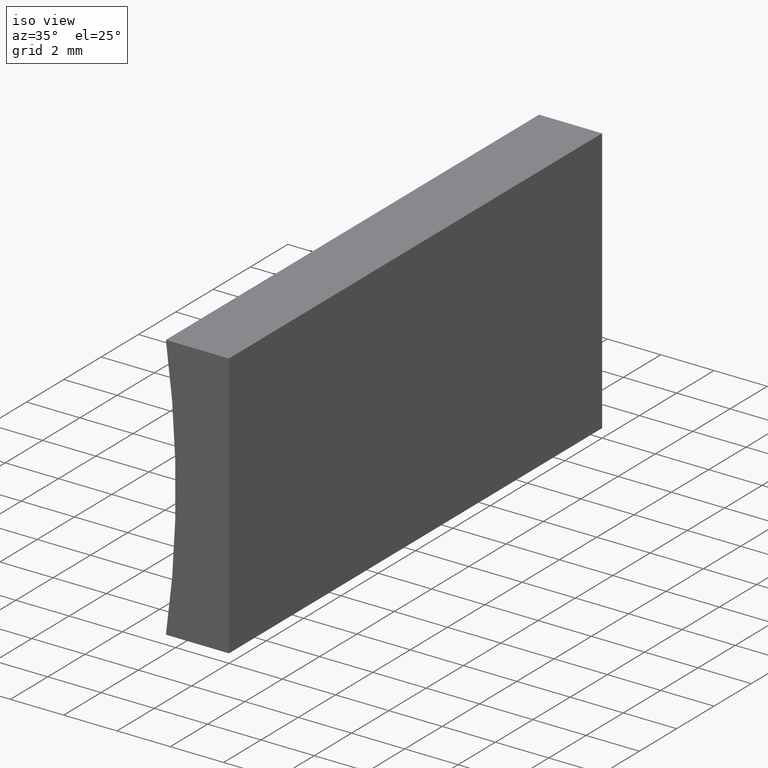
[diagram: clean part render]
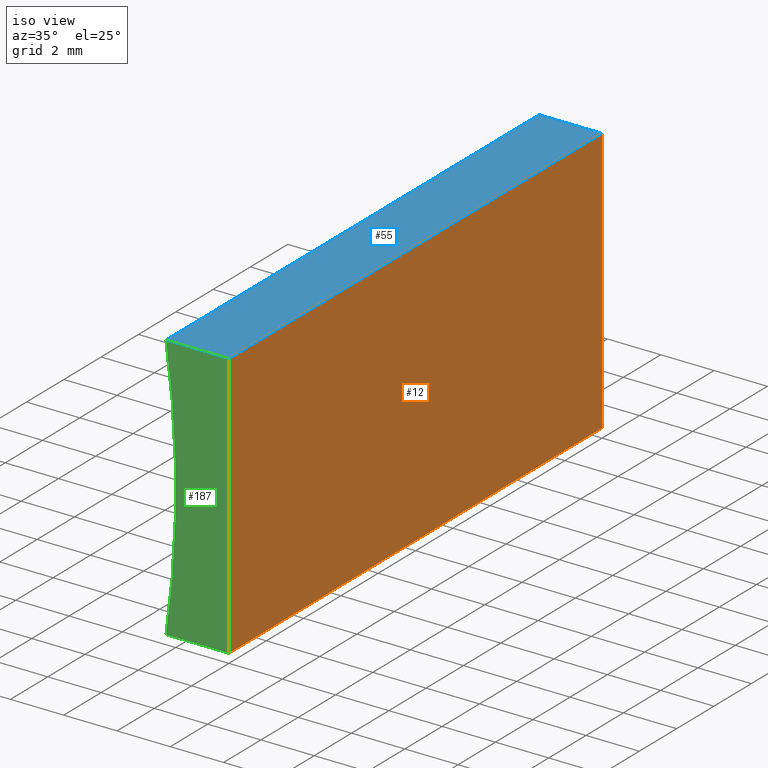
[diagram: same view with three faces highlighted in distinct colors, each labeled with its STEP entity id]
A machine part, iso view with three faces highlighted in distinct colors.
Their STEP definitions:

[orange] entity #12 — the highlighted planar face has unit normal (-1, 0, 0).
#8 = VECTOR ( 'NONE', #140, 1000.000000000000000 ) ;
#12 = ADVANCED_FACE ( 'NONE', ( #47 ), #98, .F. ) ;
#14 = LINE ( 'NONE', #135, #93 ) ;
#22 = ORIENTED_EDGE ( 'NONE', *, *, #115, .T. ) ;
#23 = CARTESIAN_POINT ( 'NONE',  ( 0.0000000000000000000, 20.00000000000000000, 0.0000000000000000000 ) ) ;
#41 = ORIENTED_EDGE ( 'NONE', *, *, #127, .F. ) ;
#43 = ORIENTED_EDGE ( 'NONE', *, *, #86, .T. ) ;
#47 = FACE_OUTER_BOUND ( 'NONE', #137, .T. ) ;
#62 = CARTESIAN_POINT ( 'NONE',  ( 6.123233995736766300E-016, 20.00000000000000000, 10.00000000000000000 ) ) ;
#69 = DIRECTION ( 'NONE',  ( -6.123233995736766000E-017, -0.0000000000000000000, -1.000000000000000000 ) ) ;
#70 = DIRECTION ( 'NONE',  ( -6.123233995736766000E-017, -0.0000000000000000000, -1.000000000000000000 ) ) ;
#72 = AXIS2_PLACEMENT_3D ( 'NONE', #178, #80, #94 ) ;
#74 = LINE ( 'NONE', #193, #8 ) ;
#80 = DIRECTION ( 'NONE',  ( -1.000000000000000000, 0.0000000000000000000, 6.123233995736766000E-017 ) ) ;
#81 = VERTEX_POINT ( 'NONE', #189 ) ;
#86 = EDGE_CURVE ( 'NONE', #119, #81, #14, .T. ) ;
#92 = CARTESIAN_POINT ( 'NONE',  ( 0.0000000000000000000, 20.00000000000000000, 0.0000000000000000000 ) ) ;
#93 = VECTOR ( 'NONE', #69, 1000.000000000000000 ) ;
#94 = DIRECTION ( 'NONE',  ( 6.123233995736766000E-017, 0.0000000000000000000, 1.000000000000000000 ) ) ;
#96 = CARTESIAN_POINT ( 'NONE',  ( 0.0000000000000000000, 20.00000000000000000, 0.0000000000000000000 ) ) ;
#98 = PLANE ( 'NONE',  #72 ) ;
#100 = VERTEX_POINT ( 'NONE', #62 ) ;
#107 = VERTEX_POINT ( 'NONE', #23 ) ;
#115 = EDGE_CURVE ( 'NONE', #100, #119, #74, .T. ) ;
#119 = VERTEX_POINT ( 'NONE', #166 ) ;
#124 = LINE ( 'NONE', #96, #163 ) ;
#127 = EDGE_CURVE ( 'NONE', #107, #81, #124, .T. ) ;
#135 = CARTESIAN_POINT ( 'NONE',  ( 0.0000000000000000000, 0.0000000000000000000, 0.0000000000000000000 ) ) ;
#137 = EDGE_LOOP ( 'NONE', ( #43, #41, #158, #22 ) ) ;
#140 = DIRECTION ( 'NONE',  ( -0.0000000000000000000, -1.000000000000000000, -0.0000000000000000000 ) ) ;
#158 = ORIENTED_EDGE ( 'NONE', *, *, #196, .F. ) ;
#163 = VECTOR ( 'NONE', #176, 1000.000000000000000 ) ;
#165 = VECTOR ( 'NONE', #70, 1000.000000000000000 ) ;
#166 = CARTESIAN_POINT ( 'NONE',  ( 6.123233995736766300E-016, 0.0000000000000000000, 10.00000000000000000 ) ) ;
#176 = DIRECTION ( 'NONE',  ( -0.0000000000000000000, -1.000000000000000000, -0.0000000000000000000 ) ) ;
#178 = CARTESIAN_POINT ( 'NONE',  ( 0.0000000000000000000, 20.00000000000000000, 0.0000000000000000000 ) ) ;
#181 = LINE ( 'NONE', #92, #165 ) ;
#189 = CARTESIAN_POINT ( 'NONE',  ( 0.0000000000000000000, 0.0000000000000000000, 0.0000000000000000000 ) ) ;
#193 = CARTESIAN_POINT ( 'NONE',  ( 6.123233995736766300E-016, 20.00000000000000000, 10.00000000000000000 ) ) ;
#196 = EDGE_CURVE ( 'NONE', #100, #107, #181, .T. ) ;

[blue] entity #55 — the highlighted planar face has unit normal (-0, 0, -1).
#8 = VECTOR ( 'NONE', #140, 1000.000000000000000 ) ;
#16 = ORIENTED_EDGE ( 'NONE', *, *, #141, .F. ) ;
#19 = PLANE ( 'NONE',  #142 ) ;
#27 = DIRECTION ( 'NONE',  ( -7.332349904615366500E-016, 0.0000000000000000000, -1.000000000000000000 ) ) ;
#31 = EDGE_LOOP ( 'NONE', ( #204, #134, #16, #66 ) ) ;
#39 = DIRECTION ( 'NONE',  ( 1.000000000000000000, -0.0000000000000000000, -7.332349904615366500E-016 ) ) ;
#50 = VERTEX_POINT ( 'NONE', #169 ) ;
#52 = CARTESIAN_POINT ( 'NONE',  ( -2.365849282349278500, 20.00000000000000000, 10.00000000000000200 ) ) ;
#55 = ADVANCED_FACE ( 'NONE', ( #99 ), #19, .F. ) ;
#56 = LINE ( 'NONE', #102, #182 ) ;
#62 = CARTESIAN_POINT ( 'NONE',  ( 6.123233995736766300E-016, 20.00000000000000000, 10.00000000000000000 ) ) ;
#66 = ORIENTED_EDGE ( 'NONE', *, *, #84, .T. ) ;
#74 = LINE ( 'NONE', #193, #8 ) ;
#84 = EDGE_CURVE ( 'NONE', #50, #138, #89, .T. ) ;
#88 = VECTOR ( 'NONE', #39, 1000.000000000000000 ) ;
#89 = LINE ( 'NONE', #52, #159 ) ;
#99 = FACE_OUTER_BOUND ( 'NONE', #31, .T. ) ;
#100 = VERTEX_POINT ( 'NONE', #62 ) ;
#102 = CARTESIAN_POINT ( 'NONE',  ( 6.123233995736766300E-016, 20.00000000000000000, 10.00000000000000000 ) ) ;
#112 = LINE ( 'NONE', #133, #88 ) ;
#113 = DIRECTION ( 'NONE',  ( -0.0000000000000000000, -1.000000000000000000, -0.0000000000000000000 ) ) ;
#115 = EDGE_CURVE ( 'NONE', #100, #119, #74, .T. ) ;
#119 = VERTEX_POINT ( 'NONE', #166 ) ;
#128 = DIRECTION ( 'NONE',  ( -1.000000000000000000, 0.0000000000000000000, 7.332349904615366500E-016 ) ) ;
#131 = CARTESIAN_POINT ( 'NONE',  ( -2.365849282349278500, 0.0000000000000000000, 10.00000000000000200 ) ) ;
#133 = CARTESIAN_POINT ( 'NONE',  ( 6.123233995736766300E-016, 0.0000000000000000000, 10.00000000000000000 ) ) ;
#134 = ORIENTED_EDGE ( 'NONE', *, *, #115, .F. ) ;
#138 = VERTEX_POINT ( 'NONE', #131 ) ;
#140 = DIRECTION ( 'NONE',  ( -0.0000000000000000000, -1.000000000000000000, -0.0000000000000000000 ) ) ;
#141 = EDGE_CURVE ( 'NONE', #50, #100, #56, .T. ) ;
#142 = AXIS2_PLACEMENT_3D ( 'NONE', #173, #27, #128 ) ;
#153 = DIRECTION ( 'NONE',  ( 1.000000000000000000, -0.0000000000000000000, -7.332349904615366500E-016 ) ) ;
#159 = VECTOR ( 'NONE', #113, 1000.000000000000000 ) ;
#166 = CARTESIAN_POINT ( 'NONE',  ( 6.123233995736766300E-016, 0.0000000000000000000, 10.00000000000000000 ) ) ;
#169 = CARTESIAN_POINT ( 'NONE',  ( -2.365849282349278500, 20.00000000000000000, 10.00000000000000200 ) ) ;
#173 = CARTESIAN_POINT ( 'NONE',  ( 6.123233995736766300E-016, 20.00000000000000000, 10.00000000000000000 ) ) ;
#182 = VECTOR ( 'NONE', #153, 1000.000000000000000 ) ;
#193 = CARTESIAN_POINT ( 'NONE',  ( 6.123233995736766300E-016, 20.00000000000000000, 10.00000000000000000 ) ) ;
#194 = EDGE_CURVE ( 'NONE', #138, #119, #112, .T. ) ;
#204 = ORIENTED_EDGE ( 'NONE', *, *, #194, .T. ) ;

[green] entity #187 — the highlighted planar face has unit normal (0, 1, 0).
#7 = EDGE_CURVE ( 'NONE', #81, #139, #37, .T. ) ;
#10 = CARTESIAN_POINT ( 'NONE',  ( -2.365849282349278900, 0.0000000000000000000, 8.673617379884035500E-016 ) ) ;
#14 = LINE ( 'NONE', #135, #93 ) ;
#17 = EDGE_LOOP ( 'NONE', ( #53, #188, #68, #90 ) ) ;
#26 = PLANE ( 'NONE',  #33 ) ;
#28 = CARTESIAN_POINT ( 'NONE',  ( -36.35000000000000100, 0.0000000000000000000, 5.000000000000005300 ) ) ;
#33 = AXIS2_PLACEMENT_3D ( 'NONE', #28, #42, #195 ) ;
#35 = VECTOR ( 'NONE', #61, 1000.000000000000000 ) ;
#37 = LINE ( 'NONE', #77, #35 ) ;
#39 = DIRECTION ( 'NONE',  ( 1.000000000000000000, -0.0000000000000000000, -7.332349904615366500E-016 ) ) ;
#42 = DIRECTION ( 'NONE',  ( 0.0000000000000000000, 1.000000000000000000, 0.0000000000000000000 ) ) ;
#53 = ORIENTED_EDGE ( 'NONE', *, *, #7, .F. ) ;
#61 = DIRECTION ( 'NONE',  ( -1.000000000000000000, 0.0000000000000000000, -7.332349904615364600E-016 ) ) ;
#68 = ORIENTED_EDGE ( 'NONE', *, *, #194, .F. ) ;
#69 = DIRECTION ( 'NONE',  ( -6.123233995736766000E-017, -0.0000000000000000000, -1.000000000000000000 ) ) ;
#77 = CARTESIAN_POINT ( 'NONE',  ( 0.0000000000000000000, 0.0000000000000000000, 0.0000000000000000000 ) ) ;
#81 = VERTEX_POINT ( 'NONE', #189 ) ;
#86 = EDGE_CURVE ( 'NONE', #119, #81, #14, .T. ) ;
#88 = VECTOR ( 'NONE', #39, 1000.000000000000000 ) ;
#90 = ORIENTED_EDGE ( 'NONE', *, *, #199, .F. ) ;
#93 = VECTOR ( 'NONE', #69, 1000.000000000000000 ) ;
#112 = LINE ( 'NONE', #133, #88 ) ;
#119 = VERTEX_POINT ( 'NONE', #166 ) ;
#121 = DIRECTION ( 'NONE',  ( -0.0000000000000000000, -1.000000000000000000, -0.0000000000000000000 ) ) ;
#125 = CIRCLE ( 'NONE', #190, 34.35000000000000100 ) ;
#126 = DIRECTION ( 'NONE',  ( 0.0000000000000000000, 0.0000000000000000000, 1.000000000000000000 ) ) ;
#131 = CARTESIAN_POINT ( 'NONE',  ( -2.365849282349278500, 0.0000000000000000000, 10.00000000000000200 ) ) ;
#133 = CARTESIAN_POINT ( 'NONE',  ( 6.123233995736766300E-016, 0.0000000000000000000, 10.00000000000000000 ) ) ;
#135 = CARTESIAN_POINT ( 'NONE',  ( 0.0000000000000000000, 0.0000000000000000000, 0.0000000000000000000 ) ) ;
#138 = VERTEX_POINT ( 'NONE', #131 ) ;
#139 = VERTEX_POINT ( 'NONE', #10 ) ;
#154 = FACE_OUTER_BOUND ( 'NONE', #17, .T. ) ;
#166 = CARTESIAN_POINT ( 'NONE',  ( 6.123233995736766300E-016, 0.0000000000000000000, 10.00000000000000000 ) ) ;
#171 = CARTESIAN_POINT ( 'NONE',  ( -36.35000000000000100, 0.0000000000000000000, 5.000000000000005300 ) ) ;
#187 = ADVANCED_FACE ( 'NONE', ( #154 ), #26, .F. ) ;
#188 = ORIENTED_EDGE ( 'NONE', *, *, #86, .F. ) ;
#189 = CARTESIAN_POINT ( 'NONE',  ( 0.0000000000000000000, 0.0000000000000000000, 0.0000000000000000000 ) ) ;
#190 = AXIS2_PLACEMENT_3D ( 'NONE', #171, #121, #126 ) ;
#194 = EDGE_CURVE ( 'NONE', #138, #119, #112, .T. ) ;
#195 = DIRECTION ( 'NONE',  ( 0.0000000000000000000, -0.0000000000000000000, 1.000000000000000000 ) ) ;
#199 = EDGE_CURVE ( 'NONE', #139, #138, #125, .T. ) ;